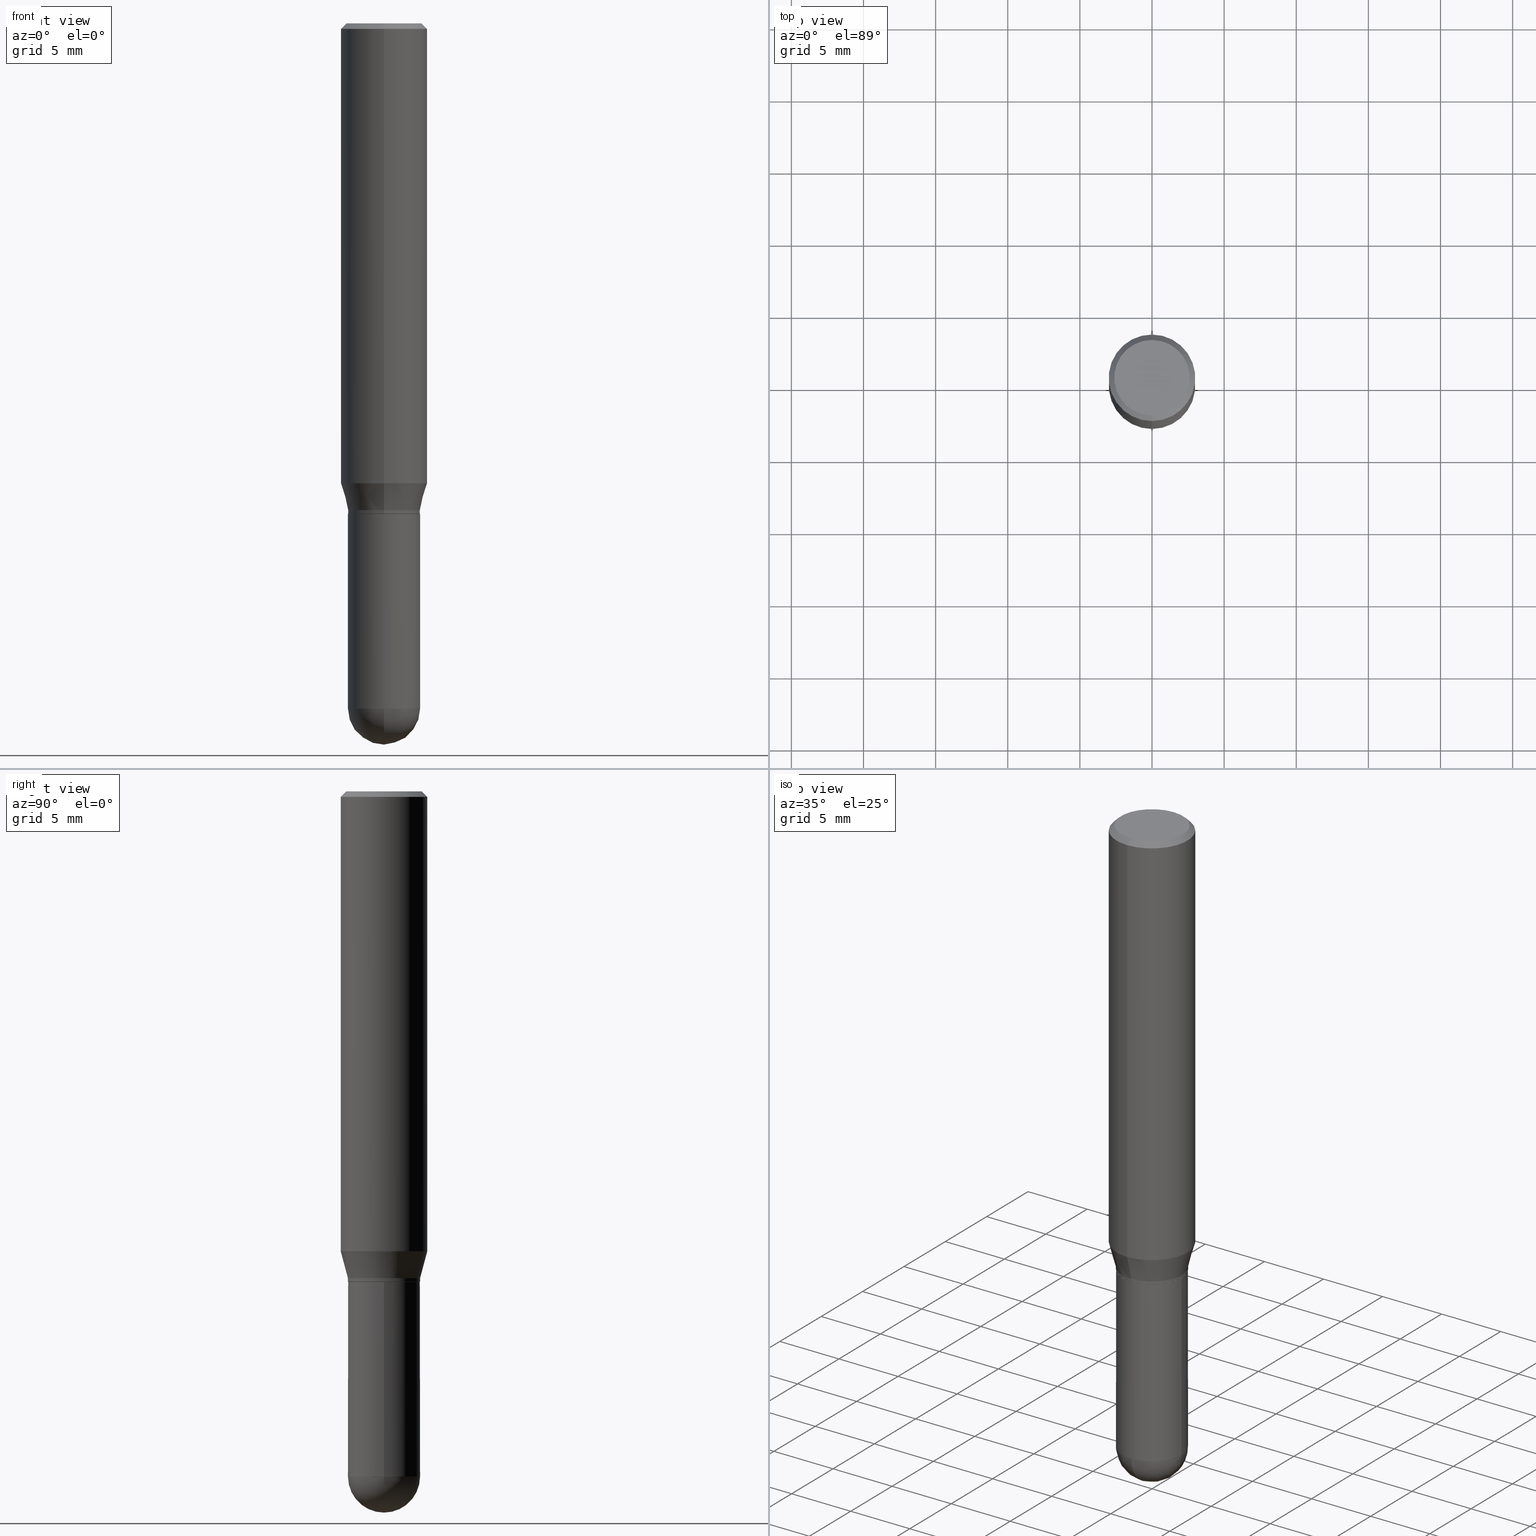
[diagram: canonical four-view strip — front | top / right | iso, engineering-drawing reading convention]
A machine part, canonical four-view strip (front | top / right | iso — engineering-drawing reading convention). The complete STEP part file that produces these views, byte-faithful:
ISO-10303-21;
HEADER;
FILE_DESCRIPTION (( 'STEP AP203' ),
    '1' );
FILE_NAME ('48615.STEP',
    '2024-03-08T13:11:17',
    ( '' ),
    ( '' ),
    'SwSTEP 2.0',
    'SolidWorks 2023',
    '' );
FILE_SCHEMA (( 'CONFIG_CONTROL_DESIGN' ));
ENDSEC;

DATA;
#1 = LINE ( 'NONE', #212, #111 ) ;
#2 = ORIENTED_EDGE ( 'NONE', *, *, #47, .F. ) ;
#3 = DIRECTION ( 'NONE',  ( 1.839019923739604654E-15, 0.2588190451025255689, 0.9659258262890669799 ) ) ;
#4 = VERTEX_POINT ( 'NONE', #377 ) ;
#5 = CYLINDRICAL_SURFACE ( 'NONE', #181, 0.09844999999999991258 ) ;
#6 = APPLICATION_CONTEXT ( 'configuration controlled 3d designs of mechanical parts and assemblies' ) ;
#7 = CC_DESIGN_SECURITY_CLASSIFICATION ( #386, ( #238 ) ) ;
#8 = EDGE_CURVE ( 'NONE', #118, #463, #145, .T. ) ;
#9 = CARTESIAN_POINT ( 'NONE',  ( 0.09844999999999999585, -6.874726756182129545E-16, 4.800596035771099214E-30 ) ) ;
#10 = DIRECTION ( 'NONE',  ( -2.445312692479667883E-29, 3.491704902554816982E-15, 1.000000000000000000 ) ) ;
#11 = EDGE_LOOP ( 'NONE', ( #499, #261 ) ) ;
#12 = EDGE_CURVE ( 'NONE', #304, #364, #294, .T. ) ;
#13 = AXIS2_PLACEMENT_3D ( 'NONE', #268, #69, #491 ) ;
#14 = ORIENTED_EDGE ( 'NONE', *, *, #8, .F. ) ;
#15 = AXIS2_PLACEMENT_3D ( 'NONE', #283, #397, #35 ) ;
#16 = ADVANCED_FACE ( 'NONE', ( #186 ), #456, .F. ) ;
#17 = FACE_OUTER_BOUND ( 'NONE', #107, .T. ) ;
#18 = DIRECTION ( 'NONE',  ( -2.445468806185136597E-29, 3.491481338843145583E-15, 1.000000000000000000 ) ) ;
#19 = ORIENTED_EDGE ( 'NONE', *, *, #442, .T. ) ;
#20 = VERTEX_POINT ( 'NONE', #300 ) ;
#21 = EDGE_LOOP ( 'NONE', ( #378, #381, #64, #387 ) ) ;
#22 = ORIENTED_EDGE ( 'NONE', *, *, #346, .F. ) ;
#23 = AXIS2_PLACEMENT_3D ( 'NONE', #321, #191, #472 ) ;
#24 = CC_DESIGN_APPROVAL ( #28, ( #238 ) ) ;
#25 = ORIENTED_EDGE ( 'NONE', *, *, #324, .T. ) ;
#26 = CARTESIAN_POINT ( 'NONE',  ( -6.874726756181797237E-16, -0.09845000000000454776, -1.328599999999999781 ) ) ;
#27 = VERTEX_POINT ( 'NONE', #373 ) ;
#28 = APPROVAL ( #73, 'UNSPECIFIED' ) ;
#29 = COORDINATED_UNIVERSAL_TIME_OFFSET ( 5, 0, .BEHIND. ) ;
#30 = DIRECTION ( 'NONE',  ( -6.982962677686265133E-15, -1.000000000000000000, 2.774858297271981531E-15 ) ) ;
#31 = COORDINATED_UNIVERSAL_TIME_OFFSET ( 5, 0, .BEHIND. ) ;
#32 = ADVANCED_FACE ( 'NONE', ( #419 ), #423, .T. ) ;
#33 = LINE ( 'NONE', #78, #71 ) ;
#34 = DIRECTION ( 'NONE',  ( -2.445312692479667883E-29, 3.491704902554816982E-15, 1.000000000000000000 ) ) ;
#35 = DIRECTION ( 'NONE',  ( -6.982962677686265133E-15, -1.000000000000000000, 2.789022964435184631E-15 ) ) ;
#36 = APPLICATION_CONTEXT ( 'configuration controlled 3d designs of mechanical parts and assemblies' ) ;
#37 = ADVANCED_FACE ( 'NONE', ( #223 ), #270, .T. ) ;
#38 = CARTESIAN_POINT ( 'NONE',  ( 3.248842443228486773E-29, -4.639079133534330158E-15, -1.328600000000000225 ) ) ;
#39 = ORIENTED_EDGE ( 'NONE', *, *, #193, .F. ) ;
#40 = LINE ( 'NONE', #85, #507 ) ;
#41 = AXIS2_PLACEMENT_3D ( 'NONE', #383, #501, #447 ) ;
#42 = CIRCLE ( 'NONE', #315, 0.1180999999999999966 ) ;
#43 = DIRECTION ( 'NONE',  ( -2.445468806185136597E-29, 3.491481338843145583E-15, 1.000000000000000000 ) ) ;
#44 = ADVANCED_BREP_SHAPE_REPRESENTATION ( '48615', ( #258, #427, #229 ), #255 ) ;
#45 = CIRCLE ( 'NONE', #482, 0.09844999999999999585 ) ;
#46 = EDGE_LOOP ( 'NONE', ( #232, #150, #481, #65 ) ) ;
#47 = EDGE_CURVE ( 'NONE', #364, #320, #336, .T. ) ;
#48 = DIRECTION ( 'NONE',  ( 6.982962677686265922E-15, 1.000000000000000000, 0.000000000000000000 ) ) ;
#49 = APPROVAL_ROLE ( '' ) ;
#50 = DIRECTION ( 'NONE',  ( -2.445312692479667883E-29, 3.491704902554816982E-15, 1.000000000000000000 ) ) ;
#51 = CARTESIAN_POINT ( 'NONE',  ( 3.273295570153283701E-29, -4.673996182559878604E-15, -1.338600000000000012 ) ) ;
#52 = EDGE_CURVE ( 'NONE', #498, #4, #464, .T. ) ;
#53 = EDGE_CURVE ( 'NONE', #413, #438, #136, .T. ) ;
#54 = FACE_OUTER_BOUND ( 'NONE', #418, .T. ) ;
#55 = ORIENTED_EDGE ( 'NONE', *, *, #439, .T. ) ;
#56 = DIRECTION ( 'NONE',  ( -2.445312692479667883E-29, 3.491704902554816982E-15, 1.000000000000000000 ) ) ;
#57 = ORIENTED_EDGE ( 'NONE', *, *, #410, .F. ) ;
#58 = ORIENTED_EDGE ( 'NONE', *, *, #222, .F. ) ;
#59 = CIRCLE ( 'NONE', #243, 0.09844999999999999585 ) ;
#60 = DIRECTION ( 'NONE',  ( -2.445468806185136597E-29, 3.491481338843145583E-15, 1.000000000000000000 ) ) ;
#61 = ORIENTED_EDGE ( 'NONE', *, *, #124, .F. ) ;
#62 = EDGE_LOOP ( 'NONE', ( #470, #208, #345, #291 ) ) ;
#63 =( LENGTH_UNIT ( ) NAMED_UNIT ( * ) SI_UNIT ( $, .METRE. ) );
#64 = ORIENTED_EDGE ( 'NONE', *, *, #123, .F. ) ;
#65 = ORIENTED_EDGE ( 'NONE', *, *, #272, .F. ) ;
#66 = ORIENTED_EDGE ( 'NONE', *, *, #353, .T. ) ;
#67 = ORIENTED_EDGE ( 'NONE', *, *, #246, .T. ) ;
#68 = CC_DESIGN_DATE_AND_TIME_ASSIGNMENT ( #187, #276, ( #370 ) ) ;
#69 = DIRECTION ( 'NONE',  ( -1.000000000000000000, 7.105427357601001070E-15, -4.926315508542082329E-29 ) ) ;
#70 = AXIS2_PLACEMENT_3D ( 'NONE', #303, #18, #339 ) ;
#71 = VECTOR ( 'NONE', #282, 39.37007874015748143 ) ;
#72 = ORIENTED_EDGE ( 'NONE', *, *, #346, .T. ) ;
#73 = APPROVAL_STATUS ( 'not_yet_approved' ) ;
#74 = PRODUCT_DEFINITION_SHAPE ( 'NONE', 'NONE',  #370 ) ;
#75 = DATE_AND_TIME ( #190, #121 ) ;
#76 = PERSON_AND_ORGANIZATION_ROLE ( 'design_supplier' ) ;
#77 = LINE ( 'NONE', #273, #489 ) ;
#78 = CARTESIAN_POINT ( 'NONE',  ( -8.102248135368174406E-16, -0.1181000000000000522, -0.01499999999999973056 ) ) ;
#79 = DATE_TIME_ROLE ( 'classification_date' ) ;
#80 = DIRECTION ( 'NONE',  ( -2.445312692479667883E-29, 3.491704902554816982E-15, 1.000000000000000000 ) ) ;
#81 = EDGE_CURVE ( 'NONE', #209, #384, #154, .T. ) ;
#82 = CONICAL_SURFACE ( 'NONE', #23, 0.1180999999999999966, 0.7853981633974485010 ) ;
#83 = CARTESIAN_POINT ( 'NONE',  ( -6.874726756182121656E-16, -0.09844999999999991258, 3.437583476565213834E-16 ) ) ;
#84 = LOCAL_TIME ( 8, 11, 17.00000000000000000, #262 ) ;
#85 = CARTESIAN_POINT ( 'NONE',  ( 6.995293233558503551E-16, 0.09844999999999526352, -1.328600000000000447 ) ) ;
#86 = ORIENTED_EDGE ( 'NONE', *, *, #231, .T. ) ;
#87 = PERSON_AND_ORGANIZATION ( #158, #474 ) ;
#88 = EDGE_CURVE ( 'NONE', #184, #27, #437, .T. ) ;
#89 = CARTESIAN_POINT ( 'NONE',  ( 3.272072913807044359E-29, -4.672250330108600985E-15, -1.338100000000000067 ) ) ;
#90 = CYLINDRICAL_SURFACE ( 'NONE', #407, 0.09844999999999999585 ) ;
#91 = ORIENTED_EDGE ( 'NONE', *, *, #52, .T. ) ;
#92 = APPROVAL ( #97, 'UNSPECIFIED' ) ;
#93 = VECTOR ( 'NONE', #203, 39.37007874015748143 ) ;
#94 = FACE_OUTER_BOUND ( 'NONE', #21, .T. ) ;
#95 = AXIS2_PLACEMENT_3D ( 'NONE', #200, #280, #286 ) ;
#96 = ORIENTED_EDGE ( 'NONE', *, *, #105, .F. ) ;
#97 = APPROVAL_STATUS ( 'not_yet_approved' ) ;
#98 = DIRECTION ( 'NONE',  ( -2.445468806185136877E-29, 3.491481338843145188E-15, 1.000000000000000000 ) ) ;
#99 = VERTEX_POINT ( 'NONE', #153 ) ;
#100 = CARTESIAN_POINT ( 'NONE',  ( -8.246878922347475723E-16, -0.1181000000000000522, -0.01499999999999973056 ) ) ;
#101 = EDGE_LOOP ( 'NONE', ( #220, #67, #269, #452 ) ) ;
#102 = CC_DESIGN_PERSON_AND_ORGANIZATION_ASSIGNMENT ( #356, #467, ( #386 ) ) ;
#103 = CONICAL_SURFACE ( 'NONE', #288, 0.09844999999999991258, 0.2617993877991509066 ) ;
#104 = ORIENTED_EDGE ( 'NONE', *, *, #365, .T. ) ;
#105 = EDGE_CURVE ( 'NONE', #20, #242, #59, .T. ) ;
#106 = DIRECTION ( 'NONE',  ( -2.445468806185136597E-29, 3.491481338843145583E-15, 1.000000000000000000 ) ) ;
#107 = EDGE_LOOP ( 'NONE', ( #328, #217, #58, #14 ) ) ;
#108 = DATE_AND_TIME ( #426, #440 ) ;
#109 = DIRECTION ( 'NONE',  ( -2.445312692479667883E-29, 3.491704902554816982E-15, 1.000000000000000000 ) ) ;
#110 = AXIS2_PLACEMENT_3D ( 'NONE', #459, #106, #335 ) ;
#111 = VECTOR ( 'NONE', #331, 39.37007874015748143 ) ;
#112 = CALENDAR_DATE ( 2024, 8, 3 ) ;
#113 = DIRECTION ( 'NONE',  ( -6.982962677686265922E-15, -1.000000000000000000, 4.626330217890369336E-15 ) ) ;
#114 = EDGE_CURVE ( 'NONE', #144, #183, #77, .T. ) ;
#115 = PERSON_AND_ORGANIZATION ( #158, #474 ) ;
#116 = DIRECTION ( 'NONE',  ( -6.982962677686265922E-15, -1.000000000000000000, 3.487819265831411744E-15 ) ) ;
#117 = DIRECTION ( 'NONE',  ( 2.445312692479667602E-29, -3.491704902554816982E-15, -1.000000000000000000 ) ) ;
#118 = VERTEX_POINT ( 'NONE', #462 ) ;
#119 = AXIS2_PLACEMENT_3D ( 'NONE', #430, #402, #323 ) ;
#120 = CARTESIAN_POINT ( 'NONE',  ( 8.391509709326781971E-16, 0.1180999999999999966, -4.123703489917239120E-16 ) ) ;
#121 = LOCAL_TIME ( 8, 11, 17.00000000000000000, #29 ) ;
#122 = CYLINDRICAL_SURFACE ( 'NONE', #95, 0.1180999999999999966 ) ;
#123 = EDGE_CURVE ( 'NONE', #438, #183, #471, .T. ) ;
#124 = EDGE_CURVE ( 'NONE', #247, #99, #425, .T. ) ;
#125 = FACE_OUTER_BOUND ( 'NONE', #344, .T. ) ;
#126 = PERSON_AND_ORGANIZATION ( #158, #474 ) ;
#127 = CARTESIAN_POINT ( 'NONE',  ( 4.564729828889544053E-29, -6.541301325441230978E-15, -1.870050000000000212 ) ) ;
#128 = AXIS2_PLACEMENT_3D ( 'NONE', #127, #170, #48 ) ;
#129 = EDGE_CURVE ( 'NONE', #99, #463, #271, .T. ) ;
#130 = CARTESIAN_POINT ( 'NONE',  ( 3.069515929976998063E-29, -4.383015658542372764E-15, -1.255265201631271754 ) ) ;
#131 = CARTESIAN_POINT ( 'NONE',  ( 0.000000000000000000, 0.000000000000000000, 0.000000000000000000 ) ) ;
#132 = EDGE_CURVE ( 'NONE', #384, #118, #429, .T. ) ;
#133 = CARTESIAN_POINT ( 'NONE',  ( 0.000000000000000000, 0.000000000000000000, 0.000000000000000000 ) ) ;
#134 = DIRECTION ( 'NONE',  ( -2.445312692479667602E-29, 3.491704902554816982E-15, 1.000000000000000000 ) ) ;
#135 = VECTOR ( 'NONE', #483, 39.37007874015748143 ) ;
#136 = LINE ( 'NONE', #297, #314 ) ;
#137 = CIRCLE ( 'NONE', #156, 0.09844999999999999585 ) ;
#138 = APPLICATION_PROTOCOL_DEFINITION ( 'international standard', 'config_control_design', 1994, #6 ) ;
#139 = EDGE_CURVE ( 'NONE', #384, #209, #295, .T. ) ;
#140 = FACE_OUTER_BOUND ( 'NONE', #509, .T. ) ;
#141 = CARTESIAN_POINT ( 'NONE',  ( 3.667969038719537049E-31, -5.237557353832276132E-17, -0.01500000000000014343 ) ) ;
#142 = ORIENTED_EDGE ( 'NONE', *, *, #325, .F. ) ;
#143 = CARTESIAN_POINT ( 'NONE',  ( 0.000000000000000000, 0.000000000000000000, 0.000000000000000000 ) ) ;
#144 = VERTEX_POINT ( 'NONE', #199 ) ;
#145 = LINE ( 'NONE', #305, #510 ) ;
#146 = ORIENTED_EDGE ( 'NONE', *, *, #81, .T. ) ;
#147 = ADVANCED_FACE ( 'NONE', ( #239 ), #82, .T. ) ;
#148 = CIRCLE ( 'NONE', #500, 0.1030999999999999833 ) ;
#149 = DIRECTION ( 'NONE',  ( 6.982962677686265922E-15, 1.000000000000000000, -3.487819265831411744E-15 ) ) ;
#150 = ORIENTED_EDGE ( 'NONE', *, *, #172, .T. ) ;
#151 = DIRECTION ( 'NONE',  ( -2.445312692479667883E-29, 3.491704902554816982E-15, 1.000000000000000000 ) ) ;
#152 = ORIENTED_EDGE ( 'NONE', *, *, #410, .T. ) ;
#153 = CARTESIAN_POINT ( 'NONE',  ( 8.391509709327091599E-16, 0.1180999999999999411, -0.01500000000000055456 ) ) ;
#154 = CIRCLE ( 'NONE', #224, 0.09844999999999991258 ) ;
#155 = AXIS2_PLACEMENT_3D ( 'NONE', #38, #34, #319 ) ;
#156 = AXIS2_PLACEMENT_3D ( 'NONE', #363, #171, #330 ) ;
#157 = FACE_OUTER_BOUND ( 'NONE', #301, .T. ) ;
#158 = PERSON ( 'UNSPECIFIED', 'UNSPECIFIED', 'UNSPECIFIED', ('UNSPECIFIED'), ('UNSPECIFIED'), ('UNSPECIFIED') ) ;
#159 = CARTESIAN_POINT ( 'NONE',  ( 3.272072913807044359E-29, -4.672250330108600985E-15, -1.338100000000000067 ) ) ;
#160 = ORIENTED_EDGE ( 'NONE', *, *, #292, .F. ) ;
#161 = DATE_AND_TIME ( #112, #296 ) ;
#162 = CARTESIAN_POINT ( 'NONE',  ( 3.273504543959423913E-29, -4.673696920175434737E-15, -1.338600000000000012 ) ) ;
#163 = CONICAL_SURFACE ( 'NONE', #368, 0.09794999999999999540, 0.7853981633974653764 ) ;
#164 = VECTOR ( 'NONE', #98, 39.37007874015748143 ) ;
#165 = EDGE_LOOP ( 'NONE', ( #412, #19, #96, #221, #256 ) ) ;
#166 = CC_DESIGN_PERSON_AND_ORGANIZATION_ASSIGNMENT ( #115, #76, ( #238 ) ) ;
#167 = CYLINDRICAL_SURFACE ( 'NONE', #322, 0.09844999999999999585 ) ;
#168 = EDGE_LOOP ( 'NONE', ( #22, #91, #497, #2 ) ) ;
#169 = PERSON_AND_ORGANIZATION_ROLE ( 'design_owner' ) ;
#170 = DIRECTION ( 'NONE',  ( 1.000000000000000000, -6.982962677686265922E-15, 4.883557194083112340E-29 ) ) ;
#171 = DIRECTION ( 'NONE',  ( -2.445468806185136597E-29, 3.491481338843145583E-15, 1.000000000000000000 ) ) ;
#172 = EDGE_CURVE ( 'NONE', #184, #463, #33, .T. ) ;
#173 = CC_DESIGN_APPROVAL ( #92, ( #370 ) ) ;
#174 = CARTESIAN_POINT ( 'NONE',  ( 0.000000000000000000, 0.000000000000000000, 0.000000000000000000 ) ) ;
#175 = DIRECTION ( 'NONE',  ( -6.982962677686265133E-15, -1.000000000000000000, 3.491704902554816587E-15 ) ) ;
#176 = DIRECTION ( 'NONE',  ( -2.445468806185136877E-29, 3.491481338843145188E-15, 1.000000000000000000 ) ) ;
#177 = DIRECTION ( 'NONE',  ( -6.982962677686265133E-15, -1.000000000000000000, 2.789022964435184631E-15 ) ) ;
#178 = EDGE_LOOP ( 'NONE', ( #259, #308, #495, #160 ) ) ;
#179 = DIRECTION ( 'NONE',  ( -2.445468806185136597E-29, 3.491481338843145583E-15, 1.000000000000000000 ) ) ;
#180 = DIRECTION ( 'NONE',  ( -2.445312692479667883E-29, 3.491704902554816982E-15, 1.000000000000000000 ) ) ;
#181 = AXIS2_PLACEMENT_3D ( 'NONE', #131, #293, #215 ) ;
#182 = CARTESIAN_POINT ( 'NONE',  ( 6.874726756182455936E-16, 0.09844999999999531903, -1.338600000000000234 ) ) ;
#183 = VERTEX_POINT ( 'NONE', #194 ) ;
#184 = VERTEX_POINT ( 'NONE', #504 ) ;
#185 = AXIS2_PLACEMENT_3D ( 'NONE', #89, #50, #326 ) ;
#186 = FACE_OUTER_BOUND ( 'NONE', #201, .T. ) ;
#187 = DATE_AND_TIME ( #318, #306 ) ;
#188 = AXIS2_PLACEMENT_3D ( 'NONE', #249, #117, #477 ) ;
#189 = SECURITY_CLASSIFICATION_LEVEL ( 'unclassified' ) ;
#190 = CALENDAR_DATE ( 2024, 8, 3 ) ;
#191 = DIRECTION ( 'NONE',  ( 2.445312692479667883E-29, -3.491704902554816982E-15, -1.000000000000000000 ) ) ;
#192 = APPROVAL_DATE_TIME ( #108, #235 ) ;
#193 = EDGE_CURVE ( 'NONE', #118, #247, #337, .T. ) ;
#194 = CARTESIAN_POINT ( 'NONE',  ( 6.995293233558501579E-16, 0.09844999999999516638, -1.338100000000000511 ) ) ;
#195 = SHAPE_DEFINITION_REPRESENTATION ( #74, #44 ) ;
#196 = CIRCLE ( 'NONE', #15, 0.09794999999999999540 ) ;
#197 = CARTESIAN_POINT ( 'NONE',  ( 3.492064462135871408E-45, -4.986380122254510664E-31, -1.428064587762289781E-16 ) ) ;
#198 = APPROVAL_ROLE ( '' ) ;
#199 = CARTESIAN_POINT ( 'NONE',  ( 6.977529665164505961E-16, 0.09794999999999531859, -1.338600000000000234 ) ) ;
#200 = CARTESIAN_POINT ( 'NONE',  ( 0.000000000000000000, 0.000000000000000000, 0.000000000000000000 ) ) ;
#201 = EDGE_LOOP ( 'NONE', ( #457, #55 ) ) ;
#202 = PRODUCT ( '48615', '48615', '', ( #343 ) ) ;
#203 = DIRECTION ( 'NONE',  ( -2.445312692479667883E-29, 3.491704902554816982E-15, 1.000000000000000000 ) ) ;
#204 = AXIS2_PLACEMENT_3D ( 'NONE', #141, #342, #149 ) ;
#205 = CARTESIAN_POINT ( 'NONE',  ( -6.839811942793369138E-16, -0.09795000000000467222, -1.338599999999999790 ) ) ;
#206 = ADVANCED_FACE ( 'NONE', ( #432 ), #392, .T. ) ;
#207 = AXIS2_PLACEMENT_3D ( 'NONE', #51, #134, #333 ) ;
#208 = ORIENTED_EDGE ( 'NONE', *, *, #420, .F. ) ;
#209 = VERTEX_POINT ( 'NONE', #358 ) ;
#210 = CARTESIAN_POINT ( 'NONE',  ( 0.09844999999999999585, -6.288943474557743431E-15, -1.870050000000000212 ) ) ;
#211 = CARTESIAN_POINT ( 'NONE',  ( -0.09844999999999999585, 6.995293233558186035E-16, -4.842691596355954042E-30 ) ) ;
#212 = CARTESIAN_POINT ( 'NONE',  ( 6.995293233558178146E-16, 0.09844999999999991258, -3.437583476565213834E-16 ) ) ;
#213 = FACE_OUTER_BOUND ( 'NONE', #374, .T. ) ;
#214 = DIRECTION ( 'NONE',  ( -6.982962677686265133E-15, -1.000000000000000000, 2.774858297271981531E-15 ) ) ;
#215 = DIRECTION ( 'NONE',  ( -6.982962677686265133E-15, -1.000000000000000000, 3.491704902554816587E-15 ) ) ;
#216 = DIRECTION ( 'NONE',  ( -1.000000000000000000, 6.982962677686265922E-15, -4.876176775795935793E-29 ) ) ;
#217 = ORIENTED_EDGE ( 'NONE', *, *, #124, .T. ) ;
#218 = CARTESIAN_POINT ( 'NONE',  ( 0.000000000000000000, 0.000000000000000000, 0.000000000000000000 ) ) ;
#219 = VECTOR ( 'NONE', #468, 39.37007874015748143 ) ;
#220 = ORIENTED_EDGE ( 'NONE', *, *, #123, .T. ) ;
#221 = ORIENTED_EDGE ( 'NONE', *, *, #365, .F. ) ;
#222 = EDGE_CURVE ( 'NONE', #463, #99, #42, .T. ) ;
#223 = FACE_OUTER_BOUND ( 'NONE', #178, .T. ) ;
#224 = AXIS2_PLACEMENT_3D ( 'NONE', #234, #469, #30 ) ;
#225 = ADVANCED_FACE ( 'NONE', ( #157 ), #502, .T. ) ;
#226 = ORIENTED_EDGE ( 'NONE', *, *, #485, .F. ) ;
#227 = EDGE_LOOP ( 'NONE', ( #503, #86, #66, #104, #348 ) ) ;
#228 = APPROVAL_ROLE ( '' ) ;
#229 = AXIS2_PLACEMENT_3D ( 'NONE', #218, #265, #382 ) ;
#230 = DIRECTION ( 'NONE',  ( -1.000000000000000000, 6.982962677686265922E-15, -4.883557194083112340E-29 ) ) ;
#231 = EDGE_CURVE ( 'NONE', #320, #4, #385, .T. ) ;
#232 = ORIENTED_EDGE ( 'NONE', *, *, #88, .F. ) ;
#233 = APPROVAL_DATE_TIME ( #75, #28 ) ;
#234 = CARTESIAN_POINT ( 'NONE',  ( 3.248842443228486773E-29, -4.639079133534330158E-15, -1.328600000000000225 ) ) ;
#235 = APPROVAL ( #274, 'UNSPECIFIED' ) ;
#236 = DIRECTION ( 'NONE',  ( -2.445468806185136597E-29, 3.491481338843145583E-15, 1.000000000000000000 ) ) ;
#237 = CLOSED_SHELL ( 'NONE', ( #281, #206, #16, #225, #431 ) ) ;
#238 = PRODUCT_DEFINITION_FORMATION_WITH_SPECIFIED_SOURCE ( 'ANY', '', #202, .NOT_KNOWN. ) ;
#239 = FACE_OUTER_BOUND ( 'NONE', #46, .T. ) ;
#240 = COORDINATED_UNIVERSAL_TIME_OFFSET ( 5, 0, .BEHIND. ) ;
#241 = DIRECTION ( 'NONE',  ( -6.982962677686265133E-15, -1.000000000000000000, 2.774858297271981531E-15 ) ) ;
#242 = VERTEX_POINT ( 'NONE', #443 ) ;
#243 = AXIS2_PLACEMENT_3D ( 'NONE', #162, #236, #278 ) ;
#244 = DESIGN_CONTEXT ( 'detailed design', #36, 'design' ) ;
#245 = DIRECTION ( 'NONE',  ( -2.445312692479667883E-29, 3.491704902554816982E-15, 1.000000000000000000 ) ) ;
#246 = EDGE_CURVE ( 'NONE', #183, #209, #1, .T. ) ;
#247 = VERTEX_POINT ( 'NONE', #362 ) ;
#248 = PERSON_AND_ORGANIZATION ( #158, #474 ) ;
#249 = CARTESIAN_POINT ( 'NONE',  ( 7.199434520694539070E-16, 0.1030999999999999833, -4.313980048415160526E-16 ) ) ;
#250 = LINE ( 'NONE', #83, #93 ) ;
#251 = DIRECTION ( 'NONE',  ( -2.445312692479667883E-29, 3.491704902554816982E-15, 1.000000000000000000 ) ) ;
#252 = ORIENTED_EDGE ( 'NONE', *, *, #129, .F. ) ;
#253 = AXIS2_PLACEMENT_3D ( 'NONE', #355, #279, #113 ) ;
#254 = CARTESIAN_POINT ( 'NONE',  ( -0.09844999999999999585, -4.901941475583711971E-15, -1.870050000000000212 ) ) ;
#255 =( GEOMETRIC_REPRESENTATION_CONTEXT ( 3 ) GLOBAL_UNCERTAINTY_ASSIGNED_CONTEXT ( ( #434 ) ) GLOBAL_UNIT_ASSIGNED_CONTEXT ( ( #380, #454, #450 ) ) REPRESENTATION_CONTEXT ( 'NONE', 'WORKASPACE' ) );
#256 = ORIENTED_EDGE ( 'NONE', *, *, #12, .T. ) ;
#257 = LINE ( 'NONE', #211, #164 ) ;
#258 = MANIFOLD_SOLID_BREP ( 'Body-Move/Copy2[1]', #237 ) ;
#259 = ORIENTED_EDGE ( 'NONE', *, *, #114, .F. ) ;
#260 = CYLINDRICAL_SURFACE ( 'NONE', #347, 0.09844999999999991258 ) ;
#261 = ORIENTED_EDGE ( 'NONE', *, *, #88, .T. ) ;
#262 = COORDINATED_UNIVERSAL_TIME_OFFSET ( 5, 0, .BEHIND. ) ;
#263 = AXIS2_PLACEMENT_3D ( 'NONE', #372, #10, #177 ) ;
#264 = ORIENTED_EDGE ( 'NONE', *, *, #353, .F. ) ;
#265 = DIRECTION ( 'NONE',  ( 0.000000000000000000, 0.000000000000000000, 1.000000000000000000 ) ) ;
#266 = DIRECTION ( 'NONE',  ( 2.438088387897960049E-29, -3.491481338843145188E-15, -1.000000000000000000 ) ) ;
#267 = ORIENTED_EDGE ( 'NONE', *, *, #52, .F. ) ;
#268 = CARTESIAN_POINT ( 'NONE',  ( 4.564729828889544053E-29, -6.541301325441230978E-15, -1.870050000000000212 ) ) ;
#269 = ORIENTED_EDGE ( 'NONE', *, *, #139, .F. ) ;
#270 = CONICAL_SURFACE ( 'NONE', #41, 0.09794999999999999540, 0.7853981633974653764 ) ;
#271 = CIRCLE ( 'NONE', #360, 0.1180999999999999966 ) ;
#272 = EDGE_CURVE ( 'NONE', #27, #99, #284, .T. ) ;
#273 = CARTESIAN_POINT ( 'NONE',  ( 6.959766096770507385E-16, 0.09794999999999531859, -1.338600000000000234 ) ) ;
#274 = APPROVAL_STATUS ( 'not_yet_approved' ) ;
#275 = AXIS2_PLACEMENT_3D ( 'NONE', #371, #56, #214 ) ;
#276 = DATE_TIME_ROLE ( 'creation_date' ) ;
#277 = CONICAL_SURFACE ( 'NONE', #275, 0.09844999999999991258, 0.2617993877991509066 ) ;
#278 = DIRECTION ( 'NONE',  ( 1.000000000000000000, -6.982962677686265922E-15, 0.000000000000000000 ) ) ;
#279 = DIRECTION ( 'NONE',  ( -2.445312692479667883E-29, 3.491704902554816982E-15, 1.000000000000000000 ) ) ;
#280 = DIRECTION ( 'NONE',  ( -2.445312692479667883E-29, 3.491704902554816982E-15, 1.000000000000000000 ) ) ;
#281 = ADVANCED_FACE ( 'NONE', ( #289 ), #167, .T. ) ;
#282 = DIRECTION ( 'NONE',  ( -4.851104656540965064E-15, -0.7071067811865501263, -0.7071067811865449082 ) ) ;
#283 = CARTESIAN_POINT ( 'NONE',  ( 3.273295570153283701E-29, -4.673996182559878604E-15, -1.338600000000000012 ) ) ;
#284 = LINE ( 'NONE', #475, #135 ) ;
#285 = DIRECTION ( 'NONE',  ( 6.982962677686265922E-15, 1.000000000000000000, -2.774858297271980348E-15 ) ) ;
#286 = DIRECTION ( 'NONE',  ( -6.982962677686265922E-15, -1.000000000000000000, 3.491704902554817376E-15 ) ) ;
#287 = VECTOR ( 'NONE', #391, 39.37007874015748854 ) ;
#288 = AXIS2_PLACEMENT_3D ( 'NONE', #484, #411, #376 ) ;
#289 = FACE_OUTER_BOUND ( 'NONE', #165, .T. ) ;
#290 = CARTESIAN_POINT ( 'NONE',  ( 3.273504543959423913E-29, -4.673696920175434737E-15, -1.338600000000000012 ) ) ;
#291 = ORIENTED_EDGE ( 'NONE', *, *, #129, .T. ) ;
#292 = EDGE_CURVE ( 'NONE', #183, #438, #398, .T. ) ;
#293 = DIRECTION ( 'NONE',  ( -2.445312692479667883E-29, 3.491704902554816982E-15, 1.000000000000000000 ) ) ;
#294 = CIRCLE ( 'NONE', #70, 0.09844999999999999585 ) ;
#295 = CIRCLE ( 'NONE', #155, 0.09844999999999991258 ) ;
#296 = LOCAL_TIME ( 8, 11, 17.00000000000000000, #240 ) ;
#297 = CARTESIAN_POINT ( 'NONE',  ( -6.839811942793369138E-16, -0.09795000000000467222, -1.338599999999999790 ) ) ;
#298 = APPLICATION_PROTOCOL_DEFINITION ( 'international standard', 'config_control_design', 1994, #36 ) ;
#299 = CARTESIAN_POINT ( 'NONE',  ( 0.000000000000000000, 0.000000000000000000, 0.000000000000000000 ) ) ;
#300 = CARTESIAN_POINT ( 'NONE',  ( 0.09844999999999999585, -5.361169595793647297E-15, -1.338600000000000012 ) ) ;
#301 = EDGE_LOOP ( 'NONE', ( #267, #72, #473, #264 ) ) ;
#302 = DIRECTION ( 'NONE',  ( -2.445312692479667883E-29, 3.491704902554816982E-15, 1.000000000000000000 ) ) ;
#303 = CARTESIAN_POINT ( 'NONE',  ( 4.573148941006514739E-29, -6.529244677703625427E-15, -1.870050000000000212 ) ) ;
#304 = VERTEX_POINT ( 'NONE', #210 ) ;
#305 = CARTESIAN_POINT ( 'NONE',  ( -8.246878922347479668E-16, -0.1180999999999999966, 4.123703489917239120E-16 ) ) ;
#306 = LOCAL_TIME ( 8, 11, 17.00000000000000000, #313 ) ;
#307 = ORIENTED_EDGE ( 'NONE', *, *, #246, .F. ) ;
#308 = ORIENTED_EDGE ( 'NONE', *, *, #408, .T. ) ;
#309 = PERSON_AND_ORGANIZATION ( #158, #474 ) ;
#310 = ADVANCED_FACE ( 'NONE', ( #94 ), #163, .T. ) ;
#311 = CARTESIAN_POINT ( 'NONE',  ( 4.564729828889544053E-29, -6.541301325441230978E-15, -1.870050000000000212 ) ) ;
#312 = ORIENTED_EDGE ( 'NONE', *, *, #81, .F. ) ;
#313 = COORDINATED_UNIVERSAL_TIME_OFFSET ( 5, 0, .BEHIND. ) ;
#314 = VECTOR ( 'NONE', #388, 39.37007874015748143 ) ;
#315 = AXIS2_PLACEMENT_3D ( 'NONE', #316, #508, #116 ) ;
#316 = CARTESIAN_POINT ( 'NONE',  ( 3.667969038719537049E-31, -5.237557353832276132E-17, -0.01500000000000014343 ) ) ;
#317 = DIRECTION ( 'NONE',  ( 5.024295867788147587E-15, 0.7071067811865620056, 0.7071067811865330288 ) ) ;
#318 = CALENDAR_DATE ( 2024, 8, 3 ) ;
#319 = DIRECTION ( 'NONE',  ( -6.982962677686265133E-15, -1.000000000000000000, 2.774858297271981531E-15 ) ) ;
#320 = VERTEX_POINT ( 'NONE', #254 ) ;
#321 = CARTESIAN_POINT ( 'NONE',  ( 3.667969038719537049E-31, -5.237557353832276132E-17, -0.01500000000000014343 ) ) ;
#322 = AXIS2_PLACEMENT_3D ( 'NONE', #133, #43, #441 ) ;
#323 = DIRECTION ( 'NONE',  ( 1.000000000000000000, -6.982962677686265922E-15, 0.000000000000000000 ) ) ;
#324 = EDGE_CURVE ( 'NONE', #438, #384, #250, .T. ) ;
#325 = EDGE_CURVE ( 'NONE', #247, #118, #399, .T. ) ;
#326 = DIRECTION ( 'NONE',  ( -6.982962677686265133E-15, -1.000000000000000000, 2.774858297271981531E-15 ) ) ;
#327 = FACE_OUTER_BOUND ( 'NONE', #11, .T. ) ;
#328 = ORIENTED_EDGE ( 'NONE', *, *, #193, .T. ) ;
#329 = DATE_AND_TIME ( #415, #84 ) ;
#330 = DIRECTION ( 'NONE',  ( 1.000000000000000000, -6.982962677686265922E-15, 0.000000000000000000 ) ) ;
#331 = DIRECTION ( 'NONE',  ( -2.445312692479667883E-29, 3.491704902554816982E-15, 1.000000000000000000 ) ) ;
#332 = DIRECTION ( 'NONE',  ( -2.445312692479667883E-29, 3.491704902554816982E-15, 1.000000000000000000 ) ) ;
#333 = DIRECTION ( 'NONE',  ( -6.982962677686265922E-15, -1.000000000000000000, 3.491704902554816982E-15 ) ) ;
#334 = DIMENSIONAL_EXPONENTS ( 1.000000000000000000, 0.000000000000000000, 0.000000000000000000, 0.000000000000000000, 0.000000000000000000, 0.000000000000000000, 0.000000000000000000 ) ;
#335 = DIRECTION ( 'NONE',  ( 1.000000000000000000, -6.982962677686265922E-15, 0.000000000000000000 ) ) ;
#336 = CIRCLE ( 'NONE', #110, 0.09844999999999999585 ) ;
#337 = CIRCLE ( 'NONE', #253, 0.1180999999999999966 ) ;
#338 = AXIS2_PLACEMENT_3D ( 'NONE', #130, #245, #400 ) ;
#339 = DIRECTION ( 'NONE',  ( 1.000000000000000000, -6.982962677686265922E-15, 0.000000000000000000 ) ) ;
#340 = ORIENTED_EDGE ( 'NONE', *, *, #8, .T. ) ;
#341 = CYLINDRICAL_SURFACE ( 'NONE', #357, 0.1180999999999999966 ) ;
#342 = DIRECTION ( 'NONE',  ( 2.445312692479667883E-29, -3.491704902554816982E-15, -1.000000000000000000 ) ) ;
#343 = MECHANICAL_CONTEXT ( 'NONE', #6, 'mechanical' ) ;
#344 = EDGE_LOOP ( 'NONE', ( #61, #422, #340, #252 ) ) ;
#345 = ORIENTED_EDGE ( 'NONE', *, *, #272, .T. ) ;
#346 = EDGE_CURVE ( 'NONE', #498, #364, #493, .T. ) ;
#347 = AXIS2_PLACEMENT_3D ( 'NONE', #143, #302, #175 ) ;
#348 = ORIENTED_EDGE ( 'NONE', *, *, #439, .F. ) ;
#349 = DIRECTION ( 'NONE',  ( 6.982962677686265922E-15, 1.000000000000000000, -2.774858297271980348E-15 ) ) ;
#350 = ORIENTED_EDGE ( 'NONE', *, *, #408, .F. ) ;
#351 = CARTESIAN_POINT ( 'NONE',  ( 4.564729828889544053E-29, -6.541301325441230978E-15, -1.870050000000000212 ) ) ;
#352 = PERSON_AND_ORGANIZATION_ROLE ( 'creator' ) ;
#353 = EDGE_CURVE ( 'NONE', #4, #304, #137, .T. ) ;
#354 = AXIS2_PLACEMENT_3D ( 'NONE', #311, #230, #285 ) ;
#355 = CARTESIAN_POINT ( 'NONE',  ( 3.069515929976998063E-29, -4.383015658542372764E-15, -1.255265201631271754 ) ) ;
#356 = PERSON_AND_ORGANIZATION ( #158, #474 ) ;
#357 = AXIS2_PLACEMENT_3D ( 'NONE', #174, #332, #496 ) ;
#358 = CARTESIAN_POINT ( 'NONE',  ( 7.693401471442797082E-16, 0.09844999999999526352, -1.328600000000000447 ) ) ;
#359 = ORIENTED_EDGE ( 'NONE', *, *, #139, .T. ) ;
#360 = AXIS2_PLACEMENT_3D ( 'NONE', #466, #151, #394 ) ;
#361 = CARTESIAN_POINT ( 'NONE',  ( 3.492064462135871408E-45, -4.986380122254510664E-31, -1.428064587762289781E-16 ) ) ;
#362 = CARTESIAN_POINT ( 'NONE',  ( 8.391509709327087654E-16, 0.1180999999999955974, -1.255265201631272420 ) ) ;
#363 = CARTESIAN_POINT ( 'NONE',  ( 4.573148941006514739E-29, -6.529244677703625427E-15, -1.870050000000000212 ) ) ;
#364 = VERTEX_POINT ( 'NONE', #405 ) ;
#365 = EDGE_CURVE ( 'NONE', #304, #20, #479, .T. ) ;
#366 = DIRECTION ( 'NONE',  ( -2.445312692479667883E-29, 3.491704902554816982E-15, 1.000000000000000000 ) ) ;
#367 = FACE_OUTER_BOUND ( 'NONE', #101, .T. ) ;
#368 = AXIS2_PLACEMENT_3D ( 'NONE', #476, #366, #436 ) ;
#369 = ADVANCED_FACE ( 'NONE', ( #409 ), #277, .T. ) ;
#370 = PRODUCT_DEFINITION ( 'UNKNOWN', '', #238, #244 ) ;
#371 = CARTESIAN_POINT ( 'NONE',  ( 3.248842443228486773E-29, -4.639079133534330158E-15, -1.328600000000000225 ) ) ;
#372 = CARTESIAN_POINT ( 'NONE',  ( 3.273295570153283701E-29, -4.673996182559878604E-15, -1.338600000000000012 ) ) ;
#373 = CARTESIAN_POINT ( 'NONE',  ( 7.723156721521010848E-16, 0.1030999999999999833, -5.028012342296305664E-16 ) ) ;
#374 = EDGE_LOOP ( 'NONE', ( #226, #350 ) ) ;
#375 = APPROVAL_PERSON_ORGANIZATION ( #309, #28, #228 ) ;
#376 = DIRECTION ( 'NONE',  ( -6.982962677686265133E-15, -1.000000000000000000, 2.774858297271981531E-15 ) ) ;
#377 = CARTESIAN_POINT ( 'NONE',  ( -6.995293233557726523E-16, -0.09845000000000650453, -1.870049999999999990 ) ) ;
#378 = ORIENTED_EDGE ( 'NONE', *, *, #485, .T. ) ;
#379 = PRODUCT_RELATED_PRODUCT_CATEGORY ( 'detail', '', ( #202 ) ) ;
#380 =( CONVERSION_BASED_UNIT ( 'INCH', #417 ) LENGTH_UNIT ( ) NAMED_UNIT ( #334 ) );
#381 = ORIENTED_EDGE ( 'NONE', *, *, #114, .T. ) ;
#382 = DIRECTION ( 'NONE',  ( 1.000000000000000000, 0.000000000000000000, 0.000000000000000000 ) ) ;
#383 = CARTESIAN_POINT ( 'NONE',  ( 3.273295570153283701E-29, -4.673996182559878604E-15, -1.338600000000000012 ) ) ;
#384 = VERTEX_POINT ( 'NONE', #26 ) ;
#385 = CIRCLE ( 'NONE', #119, 0.09844999999999999585 ) ;
#386 = SECURITY_CLASSIFICATION ( '', '', #189 ) ;
#387 = ORIENTED_EDGE ( 'NONE', *, *, #53, .F. ) ;
#388 = DIRECTION ( 'NONE',  ( -4.937700262164631661E-15, -0.7071067811865571207, 0.7071067811865379138 ) ) ;
#389 = PERSON_AND_ORGANIZATION ( #158, #474 ) ;
#390 = PERSON_AND_ORGANIZATION ( #158, #474 ) ;
#391 = DIRECTION ( 'NONE',  ( -1.807323732225334478E-15, -0.2588190451025187966, 0.9659258262890687563 ) ) ;
#392 = SPHERICAL_SURFACE ( 'NONE', #414, 0.09844999999999994034 ) ;
#393 = APPROVAL_PERSON_ORGANIZATION ( #126, #92, #49 ) ;
#394 = DIRECTION ( 'NONE',  ( -6.982962677686265922E-15, -1.000000000000000000, 3.487819265831411744E-15 ) ) ;
#395 = DIRECTION ( 'NONE',  ( -1.000000000000000000, 6.982962677686265922E-15, -4.883557194083112340E-29 ) ) ;
#396 = ADVANCED_FACE ( 'NONE', ( #327 ), #433, .F. ) ;
#397 = DIRECTION ( 'NONE',  ( -2.445312692479667883E-29, 3.491704902554816982E-15, 1.000000000000000000 ) ) ;
#398 = CIRCLE ( 'NONE', #185, 0.09844999999999991258 ) ;
#399 = CIRCLE ( 'NONE', #338, 0.1180999999999999966 ) ;
#400 = DIRECTION ( 'NONE',  ( -6.982962677686265922E-15, -1.000000000000000000, 4.626330217890369336E-15 ) ) ;
#401 = PERSON_AND_ORGANIZATION_ROLE ( 'creator' ) ;
#402 = DIRECTION ( 'NONE',  ( -2.445468806185136597E-29, 3.491481338843145583E-15, 1.000000000000000000 ) ) ;
#403 = PLANE ( 'NONE',  #207 ) ;
#404 = ADVANCED_FACE ( 'NONE', ( #125 ), #122, .T. ) ;
#405 = CARTESIAN_POINT ( 'NONE',  ( 6.874726756182583140E-16, 0.09844999999999343165, -1.870050000000000434 ) ) ;
#406 = DIRECTION ( 'NONE',  ( 1.000000000000000000, -6.982962677686266711E-15, 4.876176775795936353E-29 ) ) ;
#407 = AXIS2_PLACEMENT_3D ( 'NONE', #299, #60, #406 ) ;
#408 = EDGE_CURVE ( 'NONE', #144, #413, #196, .T. ) ;
#409 = FACE_OUTER_BOUND ( 'NONE', #460, .T. ) ;
#410 = EDGE_CURVE ( 'NONE', #209, #247, #40, .T. ) ;
#411 = DIRECTION ( 'NONE',  ( -2.445312692479667883E-29, 3.491704902554816982E-15, 1.000000000000000000 ) ) ;
#412 = ORIENTED_EDGE ( 'NONE', *, *, #47, .T. ) ;
#413 = VERTEX_POINT ( 'NONE', #205 ) ;
#414 = AXIS2_PLACEMENT_3D ( 'NONE', #351, #395, #349 ) ;
#415 = CALENDAR_DATE ( 2024, 8, 3 ) ;
#416 = CIRCLE ( 'NONE', #263, 0.09794999999999999540 ) ;
#417 = LENGTH_MEASURE_WITH_UNIT ( LENGTH_MEASURE( 0.02539999999999999897 ), #63 );
#418 = EDGE_LOOP ( 'NONE', ( #307, #449, #25, #312 ) ) ;
#419 = FACE_OUTER_BOUND ( 'NONE', #62, .T. ) ;
#420 = EDGE_CURVE ( 'NONE', #27, #184, #148, .T. ) ;
#421 = CC_DESIGN_PERSON_AND_ORGANIZATION_ASSIGNMENT ( #248, #401, ( #370 ) ) ;
#422 = ORIENTED_EDGE ( 'NONE', *, *, #325, .T. ) ;
#423 = CONICAL_SURFACE ( 'NONE', #204, 0.1180999999999999966, 0.7853981633974485010 ) ;
#424 = AXIS2_PLACEMENT_3D ( 'NONE', #197, #80, #506 ) ;
#425 = LINE ( 'NONE', #120, #219 ) ;
#426 = CALENDAR_DATE ( 2024, 8, 3 ) ;
#427 = MANIFOLD_SOLID_BREP ( 'Body-Move/Copy2[2]', #488 ) ;
#428 = CARTESIAN_POINT ( 'NONE',  ( -6.874726756181797237E-16, -0.09845000000000454776, -1.328599999999999781 ) ) ;
#429 = LINE ( 'NONE', #428, #287 ) ;
#430 = CARTESIAN_POINT ( 'NONE',  ( 4.573148941006514739E-29, -6.529244677703625427E-15, -1.870050000000000212 ) ) ;
#431 = ADVANCED_FACE ( 'NONE', ( #486 ), #90, .T. ) ;
#432 = FACE_OUTER_BOUND ( 'NONE', #168, .T. ) ;
#433 = PLANE ( 'NONE',  #188 ) ;
#434 = UNCERTAINTY_MEASURE_WITH_UNIT (LENGTH_MEASURE( 1.000000000000000082E-05 ), #380, 'distance_accuracy_value', 'NONE');
#435 = AXIS2_PLACEMENT_3D ( 'NONE', #182, #266, #216 ) ;
#436 = DIRECTION ( 'NONE',  ( -6.982962677686265133E-15, -1.000000000000000000, 2.789022964435184631E-15 ) ) ;
#437 = CIRCLE ( 'NONE', #424, 0.1030999999999999833 ) ;
#438 = VERTEX_POINT ( 'NONE', #451 ) ;
#439 = EDGE_CURVE ( 'NONE', #242, #20, #45, .T. ) ;
#440 = LOCAL_TIME ( 8, 11, 17.00000000000000000, #31 ) ;
#441 = DIRECTION ( 'NONE',  ( 1.000000000000000000, -6.982962677686266711E-15, 4.876176775795936353E-29 ) ) ;
#442 = EDGE_CURVE ( 'NONE', #320, #242, #257, .T. ) ;
#443 = CARTESIAN_POINT ( 'NONE',  ( -0.09844999999999999585, -4.901941475583711183E-15, -1.338600000000000012 ) ) ;
#444 = DIRECTION ( 'NONE',  ( 1.000000000000000000, -6.982962677686265922E-15, 0.000000000000000000 ) ) ;
#445 = ADVANCED_FACE ( 'NONE', ( #140 ), #103, .T. ) ;
#446 = VECTOR ( 'NONE', #176, 39.37007874015748143 ) ;
#447 = DIRECTION ( 'NONE',  ( -6.982962677686265133E-15, -1.000000000000000000, 2.789022964435184631E-15 ) ) ;
#448 = ORIENTED_EDGE ( 'NONE', *, *, #132, .F. ) ;
#449 = ORIENTED_EDGE ( 'NONE', *, *, #292, .T. ) ;
#450 =( NAMED_UNIT ( * ) SI_UNIT ( $, .STERADIAN. ) SOLID_ANGLE_UNIT ( ) );
#451 = CARTESIAN_POINT ( 'NONE',  ( -6.874726756181799209E-16, -0.09845000000000465878, -1.338099999999999845 ) ) ;
#452 = ORIENTED_EDGE ( 'NONE', *, *, #324, .F. ) ;
#453 = ADVANCED_FACE ( 'NONE', ( #17 ), #341, .T. ) ;
#454 =( NAMED_UNIT ( * ) PLANE_ANGLE_UNIT ( ) SI_UNIT ( $, .RADIAN. ) );
#455 = APPROVAL_PERSON_ORGANIZATION ( #389, #235, #198 ) ;
#456 = PLANE ( 'NONE',  #435 ) ;
#457 = ORIENTED_EDGE ( 'NONE', *, *, #105, .T. ) ;
#458 = CC_DESIGN_PERSON_AND_ORGANIZATION_ASSIGNMENT ( #87, #169, ( #202 ) ) ;
#459 = CARTESIAN_POINT ( 'NONE',  ( 4.573148941006514739E-29, -6.529244677703625427E-15, -1.870050000000000212 ) ) ;
#460 = EDGE_LOOP ( 'NONE', ( #57, #146, #512, #142 ) ) ;
#461 = ADVANCED_FACE ( 'NONE', ( #54 ), #260, .T. ) ;
#462 = CARTESIAN_POINT ( 'NONE',  ( -8.246878922347173984E-16, -0.1181000000000044098, -1.255265201631271310 ) ) ;
#463 = VERTEX_POINT ( 'NONE', #100 ) ;
#464 = CIRCLE ( 'NONE', #13, 0.09844999999999994034 ) ;
#465 = ADVANCED_FACE ( 'NONE', ( #213 ), #403, .F. ) ;
#466 = CARTESIAN_POINT ( 'NONE',  ( 3.667969038719537049E-31, -5.237557353832276132E-17, -0.01500000000000014343 ) ) ;
#467 = PERSON_AND_ORGANIZATION_ROLE ( 'classification_officer' ) ;
#468 = DIRECTION ( 'NONE',  ( -2.445312692479667883E-29, 3.491704902554816982E-15, 1.000000000000000000 ) ) ;
#469 = DIRECTION ( 'NONE',  ( -2.445312692479667883E-29, 3.491704902554816982E-15, 1.000000000000000000 ) ) ;
#470 = ORIENTED_EDGE ( 'NONE', *, *, #172, .F. ) ;
#471 = CIRCLE ( 'NONE', #511, 0.09844999999999991258 ) ;
#472 = DIRECTION ( 'NONE',  ( 6.982962677686265922E-15, 1.000000000000000000, -3.487819265831411744E-15 ) ) ;
#473 = ORIENTED_EDGE ( 'NONE', *, *, #12, .F. ) ;
#474 = ORGANIZATION ( 'UNSPECIFIED', 'UNSPECIFIED', '' ) ;
#475 = CARTESIAN_POINT ( 'NONE',  ( 8.246878922347483612E-16, 0.1180999999999999411, -0.01500000000000055456 ) ) ;
#476 = CARTESIAN_POINT ( 'NONE',  ( 3.273295570153283701E-29, -4.673996182559878604E-15, -1.338600000000000012 ) ) ;
#477 = DIRECTION ( 'NONE',  ( 6.982962677686265922E-15, 1.000000000000000000, -3.491704902554816982E-15 ) ) ;
#478 = APPROVAL_DATE_TIME ( #329, #92 ) ;
#479 = LINE ( 'NONE', #9, #446 ) ;
#480 = ADVANCED_FACE ( 'NONE', ( #367 ), #5, .T. ) ;
#481 = ORIENTED_EDGE ( 'NONE', *, *, #222, .T. ) ;
#482 = AXIS2_PLACEMENT_3D ( 'NONE', #290, #179, #444 ) ;
#483 = DIRECTION ( 'NONE',  ( 4.937700262164548831E-15, 0.7071067811865452413, -0.7071067811865497932 ) ) ;
#484 = CARTESIAN_POINT ( 'NONE',  ( 3.248842443228486773E-29, -4.639079133534330158E-15, -1.328600000000000225 ) ) ;
#485 = EDGE_CURVE ( 'NONE', #413, #144, #416, .T. ) ;
#486 = FACE_OUTER_BOUND ( 'NONE', #227, .T. ) ;
#487 = CC_DESIGN_PERSON_AND_ORGANIZATION_ASSIGNMENT ( #390, #352, ( #238 ) ) ;
#488 = CLOSED_SHELL ( 'NONE', ( #480, #310, #147, #453, #445, #369, #404, #32, #396, #465, #37, #461 ) ) ;
#489 = VECTOR ( 'NONE', #317, 39.37007874015748143 ) ;
#490 = CARTESIAN_POINT ( 'NONE',  ( 4.809695788916955932E-29, -6.879009339381536060E-15, -1.968500000000000139 ) ) ;
#491 = DIRECTION ( 'NONE',  ( -7.105427357601001070E-15, -1.000000000000000000, 0.000000000000000000 ) ) ;
#492 = CC_DESIGN_APPROVAL ( #235, ( #386 ) ) ;
#493 = CIRCLE ( 'NONE', #128, 0.09844999999999994034 ) ;
#494 = DIRECTION ( 'NONE',  ( -6.982962677686265922E-15, -1.000000000000000000, 3.491704902554816587E-15 ) ) ;
#495 = ORIENTED_EDGE ( 'NONE', *, *, #53, .T. ) ;
#496 = DIRECTION ( 'NONE',  ( -6.982962677686265922E-15, -1.000000000000000000, 3.491704902554817376E-15 ) ) ;
#497 = ORIENTED_EDGE ( 'NONE', *, *, #231, .F. ) ;
#498 = VERTEX_POINT ( 'NONE', #490 ) ;
#499 = ORIENTED_EDGE ( 'NONE', *, *, #420, .T. ) ;
#500 = AXIS2_PLACEMENT_3D ( 'NONE', #361, #251, #494 ) ;
#501 = DIRECTION ( 'NONE',  ( -2.445312692479667883E-29, 3.491704902554816982E-15, 1.000000000000000000 ) ) ;
#502 = SPHERICAL_SURFACE ( 'NONE', #354, 0.09844999999999994034 ) ;
#503 = ORIENTED_EDGE ( 'NONE', *, *, #442, .F. ) ;
#504 = CARTESIAN_POINT ( 'NONE',  ( -7.587710785535310407E-16, -0.1030999999999999833, 2.171883166771725854E-16 ) ) ;
#505 = CC_DESIGN_DATE_AND_TIME_ASSIGNMENT ( #161, #79, ( #386 ) ) ;
#506 = DIRECTION ( 'NONE',  ( -6.982962677686265922E-15, -1.000000000000000000, 3.491704902554816587E-15 ) ) ;
#507 = VECTOR ( 'NONE', #3, 39.37007874015748854 ) ;
#508 = DIRECTION ( 'NONE',  ( -2.445312692479667883E-29, 3.491704902554816982E-15, 1.000000000000000000 ) ) ;
#509 = EDGE_LOOP ( 'NONE', ( #359, #152, #39, #448 ) ) ;
#510 = VECTOR ( 'NONE', #180, 39.37007874015748143 ) ;
#511 = AXIS2_PLACEMENT_3D ( 'NONE', #159, #109, #241 ) ;
#512 = ORIENTED_EDGE ( 'NONE', *, *, #132, .T. ) ;
ENDSEC;
END-ISO-10303-21;
